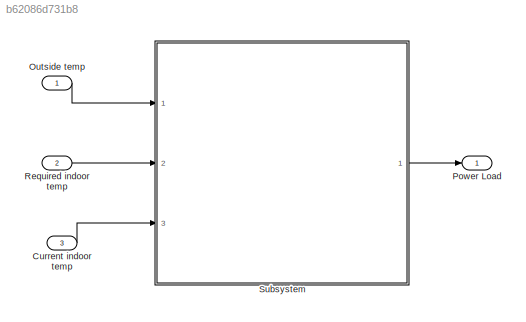
MODEL slx_b62086d731b8
KIND model
CONFIG AbsTol = auto
CONFIG EnableMultiTasking = off
CONFIG FixedStep = auto
CONFIG MaxStep = auto
CONFIG MinStep = auto
CONFIG RelTol = 1e-3
CONFIG SampleTimeConstraint = Unconstrained
CONFIG SolverName = VariableStepAuto
CONFIG StartTime = 0.0
CONFIG StopTime = 10.0
BLOCK [Inport] Current indoor temp
  Port = 3
BLOCK [Inport] Outside temp
BLOCK [Outport] Power Load
BLOCK [Inport] Required indoor temp
  Port = 2
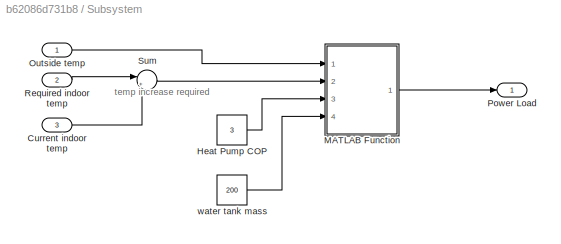
BLOCK [SubSystem] Subsystem
  Ports = [3, 1]
  RequestExecContextInheritance = off
BLOCK [Inport] Subsystem/Current indoor temp
  Port = 3
BLOCK [Constant] Subsystem/Heat Pump COP
  Value = 3
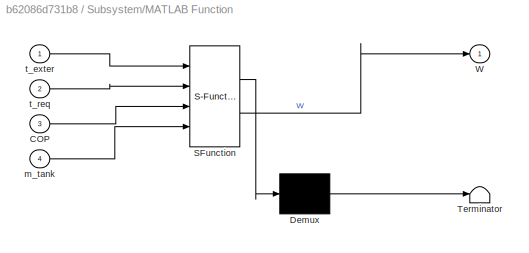
BLOCK [SubSystem] Subsystem/MATLAB Function
  ErrorFcn = Stateflow.Translate.translate
  PermitHierarchicalResolution = ExplicitOnly
  Ports = [4, 1]
  RequestExecContextInheritance = off
  SFBlockType = MATLAB Function
  TreatAsAtomicUnit = on
BLOCK [Demux] Subsystem/MATLAB Function/ Demux 
  Outputs = 1
  Ports = [1, 1]
BLOCK [S-Function] Subsystem/MATLAB Function/ SFunction 
  EnableBusSupport = off
  FunctionName = sf_sfun
  PortCounts = [4 2]
  Ports = [4, 2]
  SFcnIsStateOwnerBlock = off
  SFunctionDeploymentMode = off
  Tag = Stateflow S-Function 2
BLOCK [Terminator] Subsystem/MATLAB Function/ Terminator 
BLOCK [Inport] Subsystem/MATLAB Function/COP
  Port = 3
BLOCK [Outport] Subsystem/MATLAB Function/W
BLOCK [Inport] Subsystem/MATLAB Function/m_tank
  Port = 4
BLOCK [Inport] Subsystem/MATLAB Function/t_exter
BLOCK [Inport] Subsystem/MATLAB Function/t_req
  Port = 2
BLOCK [Inport] Subsystem/Outside temp
  NameLocation = left
BLOCK [Outport] Subsystem/Power Load
BLOCK [Inport] Subsystem/Required indoor temp
  Port = 2
BLOCK [Sum] Subsystem/Sum
  Inputs = |+-
  Ports = [2, 1]
BLOCK [Constant] Subsystem/water tank mass
  Value = 200
ANNOTATION Subsystem: temp increase required
LINE Current indoor temp:1 -> Subsystem:3
LINE Outside temp:1 -> Subsystem:1
LINE Required indoor temp:1 -> Subsystem:2
LINE Subsystem/Current indoor temp:1 -> Subsystem/Sum:2
LINE Subsystem/Heat Pump COP:1 -> Subsystem/MATLAB Function:3
LINE Subsystem/MATLAB Function:1 -> Subsystem/Power Load:1
LINE Subsystem/Outside temp:1 -> Subsystem/MATLAB Function:1
LINE Subsystem/Required indoor temp:1 -> Subsystem/Sum:1
LINE Subsystem/Sum:1 -> Subsystem/MATLAB Function:2
LINE Subsystem/water tank mass:1 -> Subsystem/MATLAB Function:4
LINE Subsystem:1 -> Power Load:1
CHART Subsystem/MATLAB Function states=1 transitions=1
  STATE_LABEL 'eML_blk_kernel()'
  STATE_LABEL 'SCRIPT:\nfunction W = fcn(t_exter, t_req, COP, m_tank)\n%Specific heat capacity of water\nc = 4182; %J/kg K\n\n% heat extracted\nQc = m*c*(t_req - t_exter)\n\n%Work done\nW = Qc/COP;\n\n'
CHART  states=0 transitions=0
